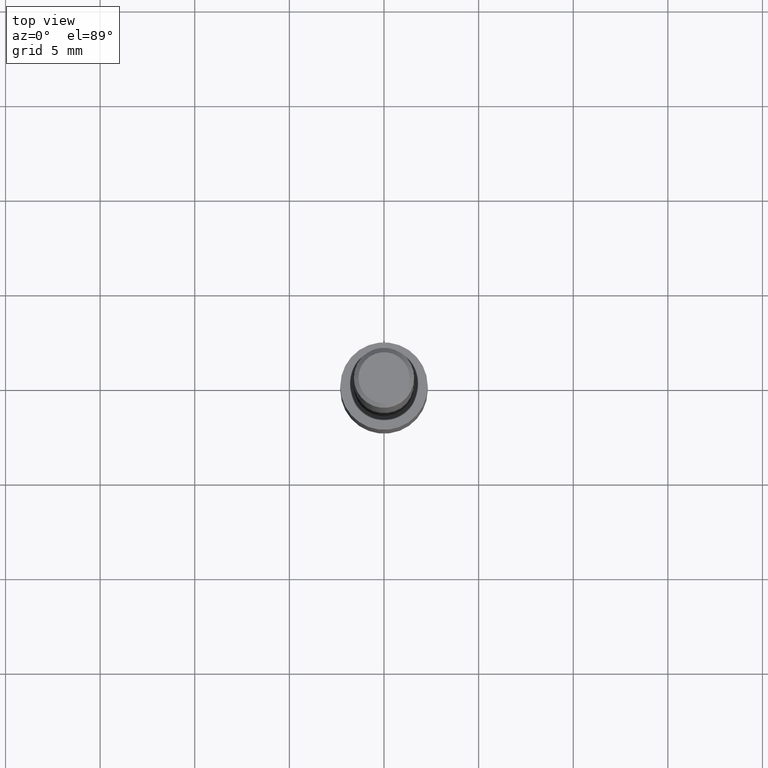
[diagram: clean part render]
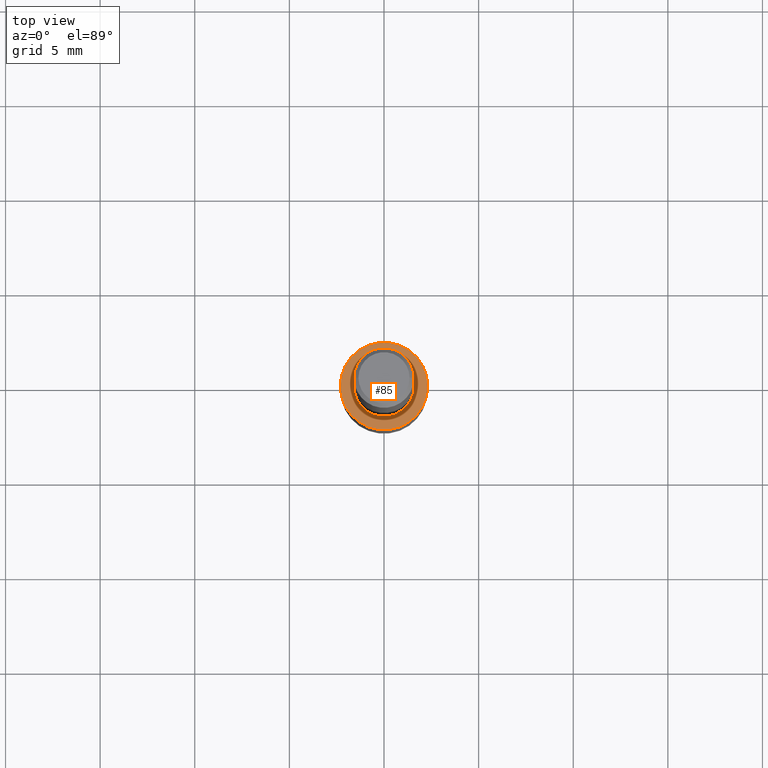
[diagram: same view with one face highlighted and labeled with its STEP entity id]
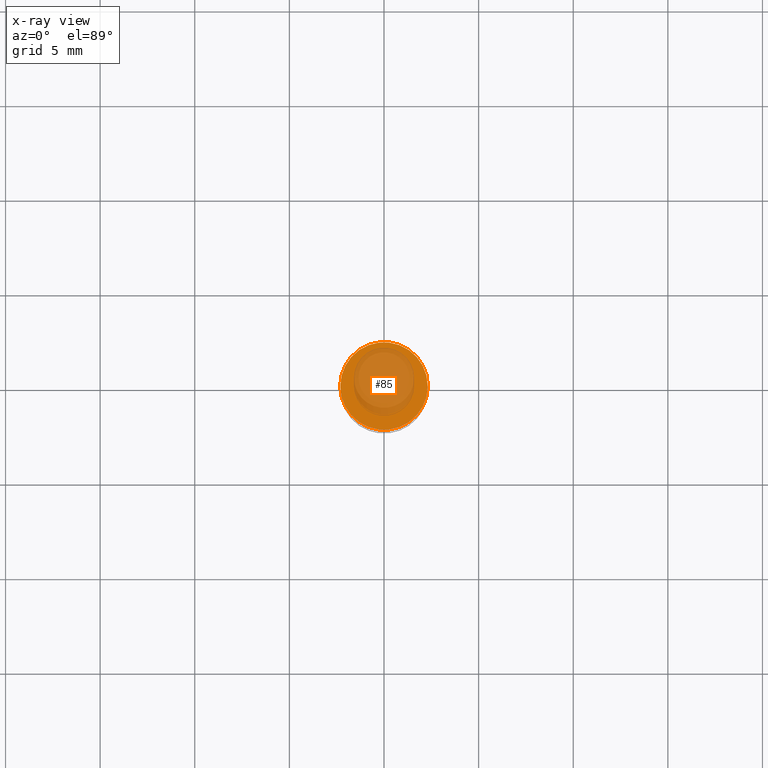
[diagram: x-ray of the same camera — body ghosted, the highlighted face saturated]
A machine part, top view. The second image highlights one B-rep face of the part: STEP entity #85.
The next image is the same camera in x-ray: the body ghosted, the highlighted face saturated — about 54% of this face is hidden behind the body in this view.
In plain terms, the highlighted planar face has unit normal (0, -0, -1).
Its self-contained STEP definition (entity closure, byte-faithful):
#11 = EDGE_LOOP ( 'NONE', ( #69, #255 ) ) ;
#45 = CARTESIAN_POINT ( 'NONE',  ( 0.09099999999999999756, -4.126930942512596153E-15, -1.000000000000000222 ) ) ;
#66 = DIRECTION ( 'NONE',  ( 1.000000000000000000, -6.982962677686269077E-15, 0.000000000000000000 ) ) ;
#69 = ORIENTED_EDGE ( 'NONE', *, *, #74, .T. ) ;
#74 = EDGE_CURVE ( 'NONE', #103, #228, #116, .T. ) ;
#75 = DIRECTION ( 'NONE',  ( 1.000000000000000000, -6.982962677686269077E-15, 0.000000000000000000 ) ) ;
#85 = ADVANCED_FACE ( 'NONE', ( #331 ), #109, .F. ) ;
#95 = CARTESIAN_POINT ( 'NONE',  ( 2.445468806185136877E-29, -3.491481338843145977E-15, -1.000000000000000222 ) ) ;
#103 = VERTEX_POINT ( 'NONE', #45 ) ;
#109 = PLANE ( 'NONE',  #299 ) ;
#116 = CIRCLE ( 'NONE', #142, 0.09099999999999999756 ) ;
#130 = AXIS2_PLACEMENT_3D ( 'NONE', #248, #150, #75 ) ;
#142 = AXIS2_PLACEMENT_3D ( 'NONE', #95, #278, #66 ) ;
#150 = DIRECTION ( 'NONE',  ( -2.445468806185136597E-29, 3.491481338843145583E-15, 1.000000000000000000 ) ) ;
#181 = DIRECTION ( 'NONE',  ( 2.438088387897960049E-29, -3.491481338843145188E-15, -1.000000000000000000 ) ) ;
#226 = CARTESIAN_POINT ( 'NONE',  ( -0.09099999999999999756, -3.643679029871584738E-15, -1.000000000000000222 ) ) ;
#228 = VERTEX_POINT ( 'NONE', #226 ) ;
#248 = CARTESIAN_POINT ( 'NONE',  ( 2.445468806185136877E-29, -3.491481338843145977E-15, -1.000000000000000222 ) ) ;
#252 = CARTESIAN_POINT ( 'NONE',  ( 3.493622244694459703E-29, -1.990465957708935842E-15, -1.000000000000000222 ) ) ;
#255 = ORIENTED_EDGE ( 'NONE', *, *, #271, .T. ) ;
#256 = CIRCLE ( 'NONE', #130, 0.09099999999999999756 ) ;
#271 = EDGE_CURVE ( 'NONE', #228, #103, #256, .T. ) ;
#278 = DIRECTION ( 'NONE',  ( -2.445468806185136597E-29, 3.491481338843145583E-15, 1.000000000000000000 ) ) ;
#299 = AXIS2_PLACEMENT_3D ( 'NONE', #252, #181, #308 ) ;
#308 = DIRECTION ( 'NONE',  ( -1.000000000000000000, 6.982962677686265922E-15, -4.876176775795935793E-29 ) ) ;
#331 = FACE_OUTER_BOUND ( 'NONE', #11, .T. ) ;